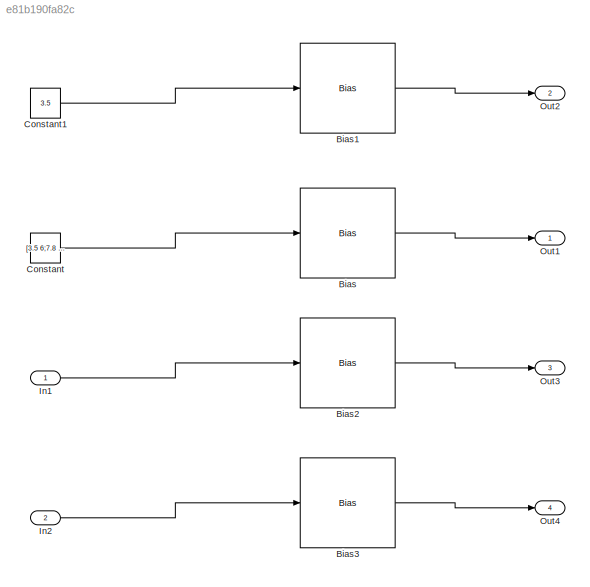
MODEL slx_e81b190fa82c
KIND model
CONFIG AbsTol = auto
CONFIG EnableMultiTasking = on
CONFIG FixedStep = 0.200000
CONFIG MaxStep = auto
CONFIG MinStep = auto
CONFIG RelTol = 1e-3
CONFIG SampleTimeConstraint = Unconstrained
CONFIG Solver = FixedStepAuto
CONFIG SolverName = FixedStepAuto
CONFIG StartTime = 0.0
CONFIG StopTime = 10.0
BLOCK [Bias] Bias
  Bias = 2.
BLOCK [Bias] Bias1
  Bias = 2.
BLOCK [Bias] Bias2
  Bias = 2.
BLOCK [Bias] Bias3
  Bias = 5
BLOCK [Constant] Constant
  Value = [3.5 6;7.8 0.]
BLOCK [Constant] Constant1
  Value = 3.5
BLOCK [Inport] In1
  IconDisplay = Port number
  OutDataTypeStr = double
BLOCK [Inport] In2
  IconDisplay = Port number
  OutDataTypeStr = int32
  Port = 2
BLOCK [Outport] Out1
  IconDisplay = Port number
BLOCK [Outport] Out2
  IconDisplay = Port number
  Port = 2
BLOCK [Outport] Out3
  IconDisplay = Port number
  Port = 3
BLOCK [Outport] Out4
  IconDisplay = Port number
  Port = 4
LINE Bias1:1 -> Out2:1
LINE Bias2:1 -> Out3:1
LINE Bias3:1 -> Out4:1
LINE Bias:1 -> Out1:1
LINE Constant1:1 -> Bias1:1
LINE Constant:1 -> Bias:1
LINE In1:1 -> Bias2:1
LINE In2:1 -> Bias3:1
